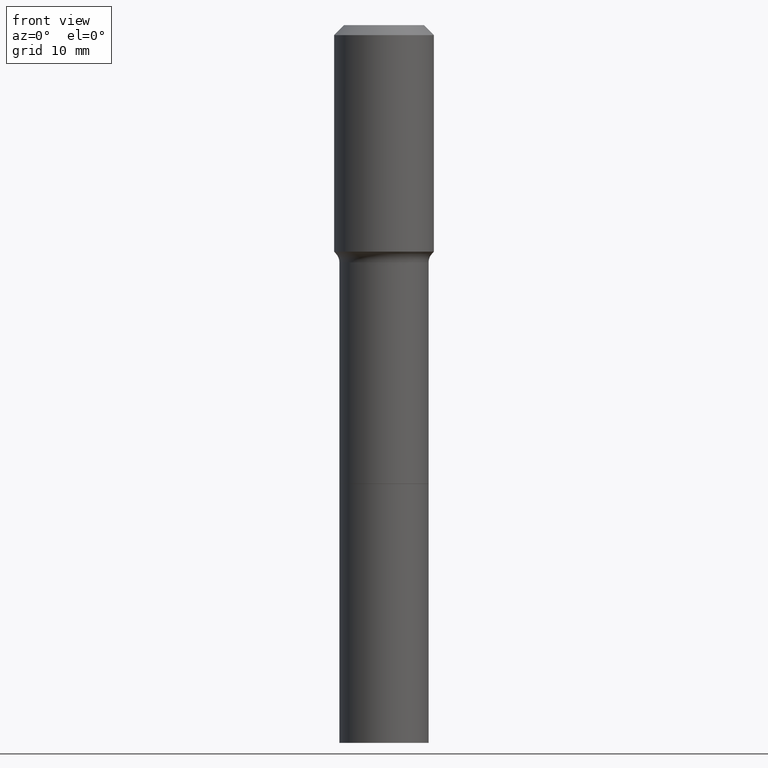
[diagram: clean part render]
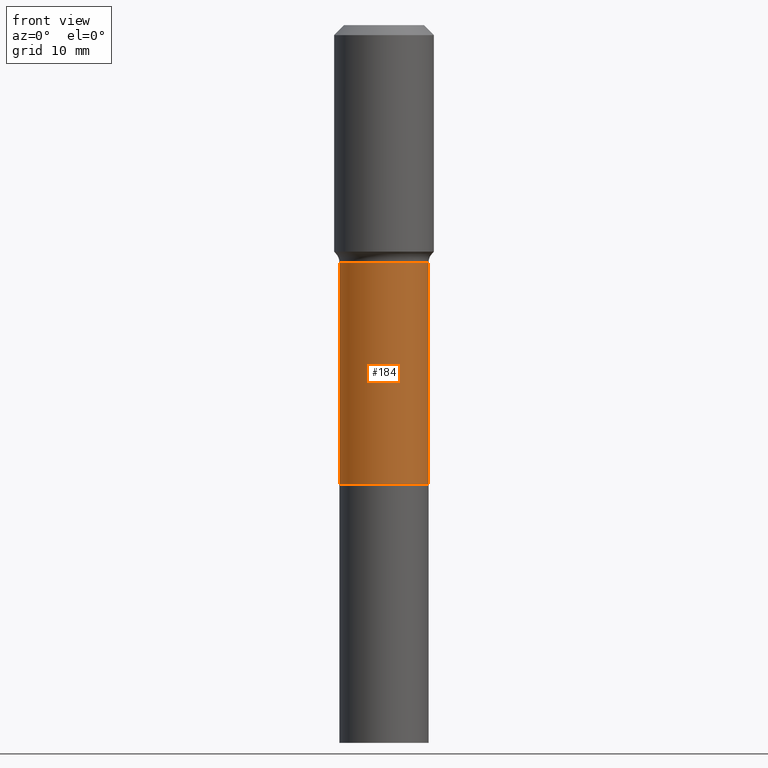
[diagram: same view with one face highlighted and labeled with its STEP entity id]
A machine part, front view. The second image highlights one B-rep face of the part: STEP entity #184.
In plain terms, the highlighted cylindrical surface (partial cylindrical patch) has radius 7.1437 mm, axis along (-0, 0, 1).
Its self-contained STEP definition (entity closure, byte-faithful):
#16 = LINE ( 'NONE', #488, #343 ) ;
#23 = ORIENTED_EDGE ( 'NONE', *, *, #261, .T. ) ;
#53 = FACE_OUTER_BOUND ( 'NONE', #186, .T. ) ;
#60 = CARTESIAN_POINT ( 'NONE',  ( -0.2812499999999998890, -5.666622112904015686E-15, -1.496599999999999486 ) ) ;
#61 = CARTESIAN_POINT ( 'NONE',  ( 0.000000000000000000, 0.000000000000000000, 0.000000000000000000 ) ) ;
#82 = EDGE_CURVE ( 'NONE', #429, #372, #16, .T. ) ;
#141 = LINE ( 'NONE', #425, #155 ) ;
#147 = AXIS2_PLACEMENT_3D ( 'NONE', #462, #177, #381 ) ;
#155 = VECTOR ( 'NONE', #380, 39.37007874015748143 ) ;
#170 = DIRECTION ( 'NONE',  ( -2.445468806185136597E-29, 3.491481338843145583E-15, 1.000000000000000000 ) ) ;
#177 = DIRECTION ( 'NONE',  ( -2.445468806185136597E-29, 3.491481338843145583E-15, 1.000000000000000000 ) ) ;
#184 = ADVANCED_FACE ( 'NONE', ( #53 ), #417, .T. ) ;
#186 = EDGE_LOOP ( 'NONE', ( #414, #233, #23, #435 ) ) ;
#196 = VERTEX_POINT ( 'NONE', #212 ) ;
#212 = CARTESIAN_POINT ( 'NONE',  ( 0.2812499999999998890, -7.189309224811911309E-15, -1.496599999999999486 ) ) ;
#233 = ORIENTED_EDGE ( 'NONE', *, *, #436, .T. ) ;
#236 = VERTEX_POINT ( 'NONE', #265 ) ;
#257 = CARTESIAN_POINT ( 'NONE',  ( 7.077431271980401746E-29, -1.010469614274594375E-14, -2.894099999999999007 ) ) ;
#261 = EDGE_CURVE ( 'NONE', #236, #196, #141, .T. ) ;
#265 = CARTESIAN_POINT ( 'NONE',  ( 0.2812500000000000555, -1.206865439584520705E-14, -2.894099999999999007 ) ) ;
#289 = AXIS2_PLACEMENT_3D ( 'NONE', #257, #335, #416 ) ;
#290 = DIRECTION ( 'NONE',  ( 1.000000000000000000, -6.982962677686268288E-15, 4.876176775795935793E-29 ) ) ;
#299 = CARTESIAN_POINT ( 'NONE',  ( -0.2812500000000000555, -5.666622112904014897E-15, -2.894099999999999007 ) ) ;
#305 = CIRCLE ( 'NONE', #289, 0.2812500000000000555 ) ;
#335 = DIRECTION ( 'NONE',  ( -2.445468806185136597E-29, 3.491481338843145583E-15, 1.000000000000000000 ) ) ;
#336 = DIRECTION ( 'NONE',  ( -2.445468806185136877E-29, 3.491481338843145188E-15, 1.000000000000000000 ) ) ;
#343 = VECTOR ( 'NONE', #336, 39.37007874015748143 ) ;
#355 = CIRCLE ( 'NONE', #147, 0.2812499999999998890 ) ;
#372 = VERTEX_POINT ( 'NONE', #60 ) ;
#380 = DIRECTION ( 'NONE',  ( -2.445468806185136877E-29, 3.491481338843145188E-15, 1.000000000000000000 ) ) ;
#381 = DIRECTION ( 'NONE',  ( 1.000000000000000000, -6.982962677686265133E-15, 0.000000000000000000 ) ) ;
#414 = ORIENTED_EDGE ( 'NONE', *, *, #82, .F. ) ;
#416 = DIRECTION ( 'NONE',  ( 1.000000000000000000, -6.982962677686268288E-15, 0.000000000000000000 ) ) ;
#417 = CYLINDRICAL_SURFACE ( 'NONE', #421, 0.2812499999999999445 ) ;
#421 = AXIS2_PLACEMENT_3D ( 'NONE', #61, #170, #290 ) ;
#425 = CARTESIAN_POINT ( 'NONE',  ( 0.2812499999999999445, -1.963958253099262512E-15, 1.371424718192606732E-29 ) ) ;
#429 = VERTEX_POINT ( 'NONE', #299 ) ;
#435 = ORIENTED_EDGE ( 'NONE', *, *, #501, .F. ) ;
#436 = EDGE_CURVE ( 'NONE', #429, #236, #305, .T. ) ;
#462 = CARTESIAN_POINT ( 'NONE',  ( 3.659888615336674630E-29, -5.225350971712649586E-15, -1.496599999999999486 ) ) ;
#488 = CARTESIAN_POINT ( 'NONE',  ( -0.2812499999999999445, 1.998401444325281378E-15, -1.383450494134191988E-29 ) ) ;
#501 = EDGE_CURVE ( 'NONE', #372, #196, #355, .T. ) ;